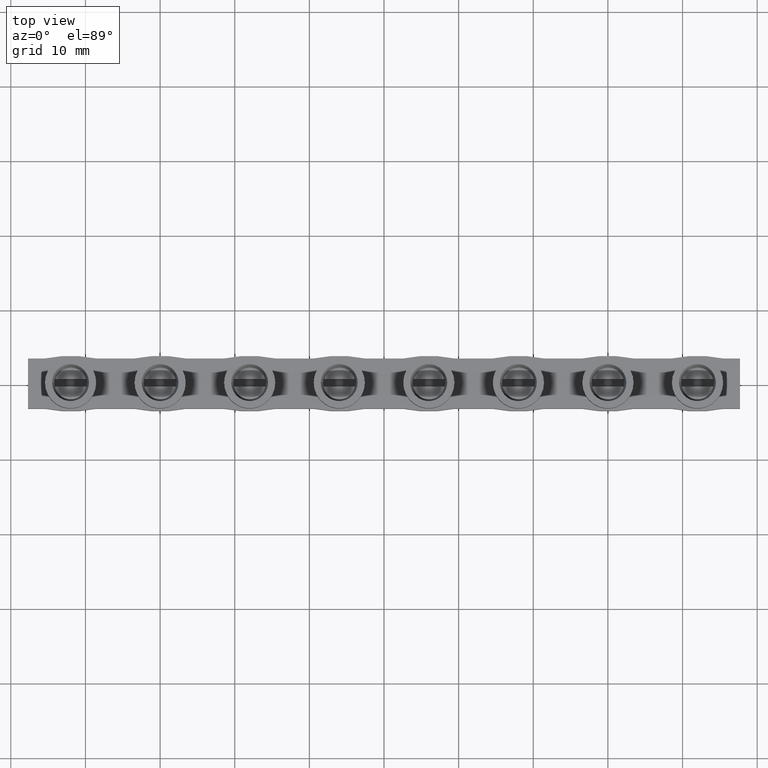
[diagram: clean part render]
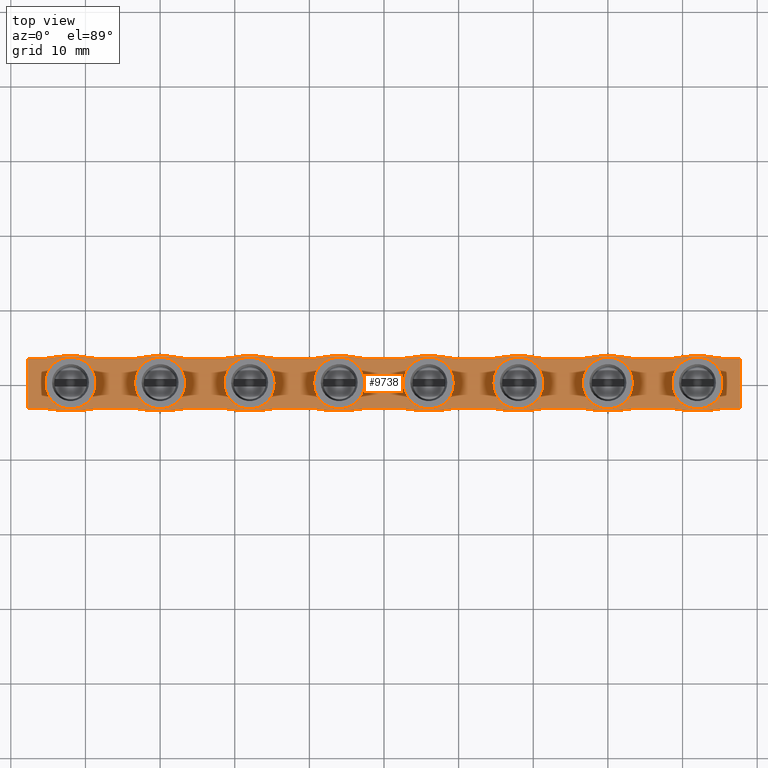
[diagram: same view with one face highlighted and labeled with its STEP entity id]
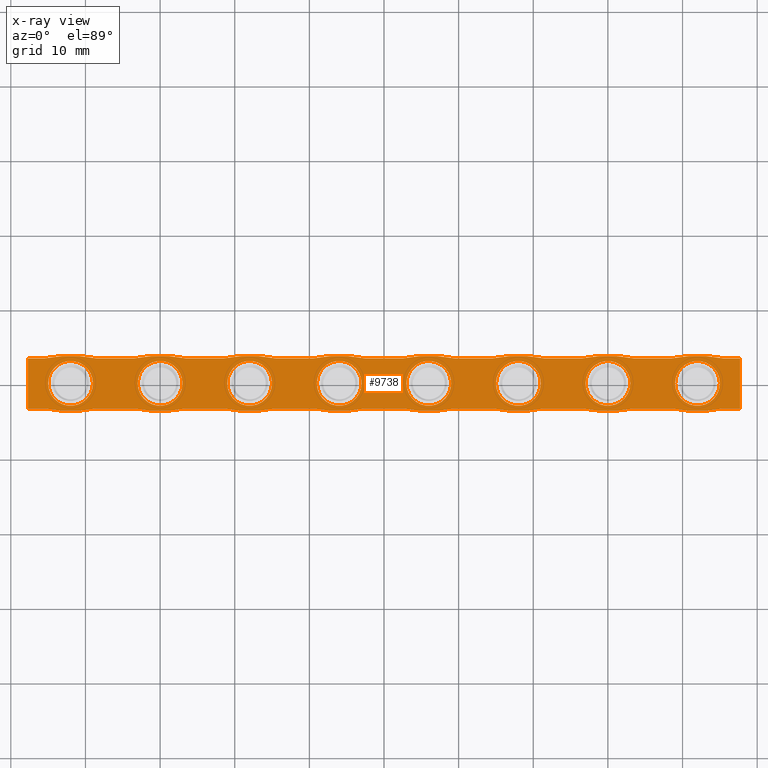
[diagram: x-ray of the same camera — body ghosted, the highlighted face saturated]
A machine part, top view. The second image highlights one B-rep face of the part: STEP entity #9738.
The next image is the same camera in x-ray: the body ghosted, the highlighted face saturated — about 0% of this face is hidden behind the body in this view.
In plain terms, the highlighted planar face has unit normal (0, 0, -1).
Its self-contained STEP definition (entity closure, byte-faithful):
#125 = AXIS2_PLACEMENT_3D ( 'NONE', #1428, #1448, #1429 ) ;
#132 = CIRCLE ( 'NONE', #125, 3.000000000000002700 ) ;
#263 = AXIS2_PLACEMENT_3D ( 'NONE', #11382, #11384, #11360 ) ;
#271 = CIRCLE ( 'NONE', #263, 3.000000000000002700 ) ;
#473 = AXIS2_PLACEMENT_3D ( 'NONE', #6692, #6693, #6718 ) ;
#594 = VECTOR ( 'NONE', #8510, 1000.000000000000000 ) ;
#595 = CIRCLE ( 'NONE', #626, 16.95000000000021600 ) ;
#604 = VECTOR ( 'NONE', #8411, 1000.000000000000000 ) ;
#605 = CIRCLE ( 'NONE', #606, 16.95000000000022000 ) ;
#606 = AXIS2_PLACEMENT_3D ( 'NONE', #8459, #8485, #8460 ) ;
#607 = VECTOR ( 'NONE', #8462, 1000.000000000000000 ) ;
#608 = VECTOR ( 'NONE', #8453, 1000.000000000000000 ) ;
#624 = VECTOR ( 'NONE', #8480, 1000.000000000000000 ) ;
#626 = AXIS2_PLACEMENT_3D ( 'NONE', #8506, #8491, #8504 ) ;
#632 = CIRCLE ( 'NONE', #633, 3.000000000000002700 ) ;
#633 = AXIS2_PLACEMENT_3D ( 'NONE', #8492, #8522, #8498 ) ;
#646 = CIRCLE ( 'NONE', #695, 16.95000000000021600 ) ;
#647 = AXIS2_PLACEMENT_3D ( 'NONE', #8636, #8632, #8617 ) ;
#650 = CIRCLE ( 'NONE', #680, 3.000000000000002700 ) ;
#651 = CIRCLE ( 'NONE', #674, 16.95000000000022000 ) ;
#652 = CIRCLE ( 'NONE', #704, 17.15000000000021900 ) ;
#657 = AXIS2_PLACEMENT_3D ( 'NONE', #8572, #8551, #8554 ) ;
#658 = VECTOR ( 'NONE', #8584, 1000.000000000000000 ) ;
#661 = VECTOR ( 'NONE', #8618, 1000.000000000000000 ) ;
#662 = CIRCLE ( 'NONE', #698, 17.15000000000021900 ) ;
#673 = AXIS2_PLACEMENT_3D ( 'NONE', #8561, #8555, #8547 ) ;
#674 = AXIS2_PLACEMENT_3D ( 'NONE', #8646, #8650, #8647 ) ;
#680 = AXIS2_PLACEMENT_3D ( 'NONE', #8541, #8537, #8548 ) ;
#682 = VECTOR ( 'NONE', #8543, 1000.000000000000000 ) ;
#686 = CIRCLE ( 'NONE', #673, 17.15000000000021900 ) ;
#688 = CIRCLE ( 'NONE', #647, 16.95000000000022000 ) ;
#692 = CIRCLE ( 'NONE', #657, 2.999999999999999100 ) ;
#695 = AXIS2_PLACEMENT_3D ( 'NONE', #8550, #8538, #8571 ) ;
#698 = AXIS2_PLACEMENT_3D ( 'NONE', #8580, #8600, #8592 ) ;
#699 = VECTOR ( 'NONE', #8539, 1000.000000000000000 ) ;
#700 = VECTOR ( 'NONE', #8635, 1000.000000000000000 ) ;
#704 = AXIS2_PLACEMENT_3D ( 'NONE', #8586, #8607, #8587 ) ;
#920 = VECTOR ( 'NONE', #4028, 1000.000000000000000 ) ;
#927 = CIRCLE ( 'NONE', #937, 2.999999999999999100 ) ;
#937 = AXIS2_PLACEMENT_3D ( 'NONE', #4105, #4113, #4087 ) ;
#987 = CIRCLE ( 'NONE', #1000, 2.999999999999999100 ) ;
#1000 = AXIS2_PLACEMENT_3D ( 'NONE', #4268, #4280, #4256 ) ;
#1153 = CARTESIAN_POINT ( 'NONE',  ( -69.00000000000000000, -1.336835475921839500E-014, -0.9000000000000014700 ) ) ;
#1223 = CARTESIAN_POINT ( 'NONE',  ( -56.99999999999999300, -1.107906329272462600E-014, -0.9000000000000014700 ) ) ;
#1428 = CARTESIAN_POINT ( 'NONE',  ( -72.00000000000001400, -1.373574879896260100E-014, -0.9000000000000014700 ) ) ;
#1429 = DIRECTION ( 'NONE',  ( -1.000000000000000000, 0.0000000000000000000, 0.0000000000000000000 ) ) ;
#1448 = DIRECTION ( 'NONE',  ( 0.0000000000000000000, 0.0000000000000000000, 1.000000000000000000 ) ) ;
#1707 = EDGE_CURVE ( 'NONE', #2871, #2787, #8393, .T. ) ;
#1710 = EDGE_CURVE ( 'NONE', #2871, #2802, #605, .T. ) ;
#1712 = EDGE_CURVE ( 'NONE', #2794, #2796, #8488, .T. ) ;
#1714 = EDGE_CURVE ( 'NONE', #2803, #2770, #8454, .T. ) ;
#1735 = EDGE_CURVE ( 'NONE', #2806, #2805, #8452, .T. ) ;
#1737 = EDGE_CURVE ( 'NONE', #2804, #2860, #8450, .T. ) ;
#1752 = EDGE_CURVE ( 'NONE', #2804, #2855, #595, .T. ) ;
#1755 = EDGE_CURVE ( 'NONE', #2669, #2613, #632, .T. ) ;
#1771 = EDGE_CURVE ( 'NONE', #2848, #2845, #686, .T. ) ;
#1774 = EDGE_CURVE ( 'NONE', #2692, #2693, #650, .T. ) ;
#1775 = EDGE_CURVE ( 'NONE', #2816, #2845, #8573, .T. ) ;
#1776 = EDGE_CURVE ( 'NONE', #2848, #2843, #8534, .T. ) ;
#1779 = EDGE_CURVE ( 'NONE', #2782, #2860, #646, .T. ) ;
#1789 = EDGE_CURVE ( 'NONE', #2668, #2677, #692, .T. ) ;
#1796 = EDGE_CURVE ( 'NONE', #2760, #2806, #8569, .T. ) ;
#1801 = EDGE_CURVE ( 'NONE', #2701, #2768, #652, .T. ) ;
#1815 = EDGE_CURVE ( 'NONE', #2799, #2796, #662, .T. ) ;
#1834 = EDGE_CURVE ( 'NONE', #2792, #2787, #688, .T. ) ;
#1841 = EDGE_CURVE ( 'NONE', #2799, #2760, #8634, .T. ) ;
#1843 = EDGE_CURVE ( 'NONE', #2866, #2857, #8614, .T. ) ;
#1844 = EDGE_CURVE ( 'NONE', #2798, #2761, #651, .T. ) ;
#2227 = EDGE_CURVE ( 'NONE', #2701, #2779, #4040, .T. ) ;
#2452 = EDGE_CURVE ( 'NONE', #2633, #2676, #927, .T. ) ;
#2498 = EDGE_CURVE ( 'NONE', #2677, #2668, #987, .T. ) ;
#2608 = VERTEX_POINT ( 'NONE', #4565 ) ;
#2613 = VERTEX_POINT ( 'NONE', #4540 ) ;
#2622 = VERTEX_POINT ( 'NONE', #4538 ) ;
#2633 = VERTEX_POINT ( 'NONE', #4555 ) ;
#2668 = VERTEX_POINT ( 'NONE', #4627 ) ;
#2669 = VERTEX_POINT ( 'NONE', #4584 ) ;
#2676 = VERTEX_POINT ( 'NONE', #4613 ) ;
#2677 = VERTEX_POINT ( 'NONE', #4596 ) ;
#2692 = VERTEX_POINT ( 'NONE', #4617 ) ;
#2693 = VERTEX_POINT ( 'NONE', #4633 ) ;
#2701 = VERTEX_POINT ( 'NONE', #4605 ) ;
#2704 = VERTEX_POINT ( 'NONE', #4587 ) ;
#2714 = VERTEX_POINT ( 'NONE', #4641 ) ;
#2723 = VERTEX_POINT ( 'NONE', #4650 ) ;
#2760 = VERTEX_POINT ( 'NONE', #4677 ) ;
#2761 = VERTEX_POINT ( 'NONE', #4665 ) ;
#2764 = VERTEX_POINT ( 'NONE', #4666 ) ;
#2768 = VERTEX_POINT ( 'NONE', #4685 ) ;
#2770 = VERTEX_POINT ( 'NONE', #4668 ) ;
#2775 = VERTEX_POINT ( 'NONE', #4687 ) ;
#2779 = VERTEX_POINT ( 'NONE', #4692 ) ;
#2782 = VERTEX_POINT ( 'NONE', #4704 ) ;
#2783 = VERTEX_POINT ( 'NONE', #4649 ) ;
#2785 = VERTEX_POINT ( 'NONE', #4711 ) ;
#2787 = VERTEX_POINT ( 'NONE', #4719 ) ;
#2789 = VERTEX_POINT ( 'NONE', #4726 ) ;
#2791 = VERTEX_POINT ( 'NONE', #4709 ) ;
#2792 = VERTEX_POINT ( 'NONE', #4714 ) ;
#2794 = VERTEX_POINT ( 'NONE', #4739 ) ;
#2796 = VERTEX_POINT ( 'NONE', #4753 ) ;
#2798 = VERTEX_POINT ( 'NONE', #4723 ) ;
#2799 = VERTEX_POINT ( 'NONE', #4741 ) ;
#2802 = VERTEX_POINT ( 'NONE', #4760 ) ;
#2803 = VERTEX_POINT ( 'NONE', #4733 ) ;
#2804 = VERTEX_POINT ( 'NONE', #4734 ) ;
#2805 = VERTEX_POINT ( 'NONE', #4742 ) ;
#2806 = VERTEX_POINT ( 'NONE', #4743 ) ;
#2816 = VERTEX_POINT ( 'NONE', #4728 ) ;
#2818 = VERTEX_POINT ( 'NONE', #4758 ) ;
#2843 = VERTEX_POINT ( 'NONE', #4776 ) ;
#2845 = VERTEX_POINT ( 'NONE', #4762 ) ;
#2848 = VERTEX_POINT ( 'NONE', #4824 ) ;
#2855 = VERTEX_POINT ( 'NONE', #4783 ) ;
#2857 = VERTEX_POINT ( 'NONE', #4771 ) ;
#2860 = VERTEX_POINT ( 'NONE', #4789 ) ;
#2866 = VERTEX_POINT ( 'NONE', #4808 ) ;
#2871 = VERTEX_POINT ( 'NONE', #4769 ) ;
#2874 = VERTEX_POINT ( 'NONE', #4782 ) ;
#2883 = VERTEX_POINT ( 'NONE', #4764 ) ;
#2886 = VERTEX_POINT ( 'NONE', #4766 ) ;
#3824 = EDGE_LOOP ( 'NONE', ( #5349, #5352 ) ) ;
#3836 = EDGE_LOOP ( 'NONE', ( #5407, #5411, #5348, #5392, #5395, #5302, #5358, #5320, #5403, #5351, #5370, #5402, #5373, #5367, #5409, #5397, #5387, #5374, #5404, #5378, #5408, #5405, #5396, #5314, #5393, #5319, #5372, #5362, #5290, #5382, #5410, #5298, #5291, #5406, #5364, #5350 ) ) ;
#3837 = EDGE_LOOP ( 'NONE', ( #5360, #5301 ) ) ;
#3850 = EDGE_LOOP ( 'NONE', ( #5289, #5401 ) ) ;
#3858 = EDGE_LOOP ( 'NONE', ( #5363, #5385 ) ) ;
#3869 = EDGE_LOOP ( 'NONE', ( #5375, #5381 ) ) ;
#3871 = EDGE_LOOP ( 'NONE', ( #5365, #5321 ) ) ;
#3883 = EDGE_LOOP ( 'NONE', ( #5400, #5292 ) ) ;
#3885 = EDGE_LOOP ( 'NONE', ( #5366, #5368 ) ) ;
#3894 = VERTEX_POINT ( 'NONE', #1153 ) ;
#3936 = VERTEX_POINT ( 'NONE', #1223 ) ;
#4028 = DIRECTION ( 'NONE',  ( 1.000000000000000000, 1.245679091791856200E-016, -0.0000000000000000000 ) ) ;
#4036 = CARTESIAN_POINT ( 'NONE',  ( 4.150000000000007500, -3.349999999999916200, -0.9000000000000014700 ) ) ;
#4040 = LINE ( 'NONE', #4036, #920 ) ;
#4087 = DIRECTION ( 'NONE',  ( -1.000000000000000000, 0.0000000000000000000, 0.0000000000000000000 ) ) ;
#4105 = CARTESIAN_POINT ( 'NONE',  ( -24.00000000000000000, -4.578582932987532800E-015, -0.9000000000000014700 ) ) ;
#4113 = DIRECTION ( 'NONE',  ( 0.0000000000000000000, 0.0000000000000000000, 1.000000000000000000 ) ) ;
#4256 = DIRECTION ( 'NONE',  ( -1.000000000000000000, 0.0000000000000000000, 0.0000000000000000000 ) ) ;
#4268 = CARTESIAN_POINT ( 'NONE',  ( 0.0000000000000000000, 0.0000000000000000000, -0.9000000000000014700 ) ) ;
#4280 = DIRECTION ( 'NONE',  ( 0.0000000000000000000, 0.0000000000000000000, 1.000000000000000000 ) ) ;
#4538 = CARTESIAN_POINT ( 'NONE',  ( -75.00000000000001400, -1.373574879896260100E-014, -0.9000000000000014700 ) ) ;
#4540 = CARTESIAN_POINT ( 'NONE',  ( -45.00000000000000000, -8.789771826230860200E-015, -0.9000000000000014700 ) ) ;
#4555 = CARTESIAN_POINT ( 'NONE',  ( -21.00000000000000000, -4.211188893243326600E-015, -0.9000000000000014700 ) ) ;
#4565 = CARTESIAN_POINT ( 'NONE',  ( -63.00000000000000000, -1.144645733246883200E-014, -0.9000000000000014700 ) ) ;
#4584 = CARTESIAN_POINT ( 'NONE',  ( -51.00000000000000700, -9.157165865975065600E-015, -0.9000000000000014700 ) ) ;
#4587 = CARTESIAN_POINT ( 'NONE',  ( -15.00000000000000000, -2.289291466493766400E-015, -0.9000000000000014700 ) ) ;
#4596 = CARTESIAN_POINT ( 'NONE',  ( 2.999999999999999100, 3.673940397442058900E-016, -0.9000000000000014700 ) ) ;
#4605 = CARTESIAN_POINT ( 'NONE',  ( -8.552899769370284800, -3.349999999999917900, -0.9000000000000014700 ) ) ;
#4613 = CARTESIAN_POINT ( 'NONE',  ( -27.00000000000000000, -4.578582932987532800E-015, -0.9000000000000014700 ) ) ;
#4617 = CARTESIAN_POINT ( 'NONE',  ( -33.00000000000000000, -6.500480359737095000E-015, -0.9000000000000014700 ) ) ;
#4627 = CARTESIAN_POINT ( 'NONE',  ( -2.999999999999999100, 0.0000000000000000000, -0.9000000000000014700 ) ) ;
#4633 = CARTESIAN_POINT ( 'NONE',  ( -39.00000000000000700, -6.867874399481300400E-015, -0.9000000000000014700 ) ) ;
#4641 = CARTESIAN_POINT ( 'NONE',  ( 15.00000000000000000, 1.833357540569354400E-015, -0.9000000000000014700 ) ) ;
#4649 = CARTESIAN_POINT ( 'NONE',  ( -63.44710023062970100, -3.349999999999927700, -0.9000000000000014700 ) ) ;
#4650 = CARTESIAN_POINT ( 'NONE',  ( 9.000000000000001800, 1.465963500825148300E-015, -0.9000000000000014700 ) ) ;
#4665 = CARTESIAN_POINT ( 'NONE',  ( -44.57326686186492300, 3.350000000000076500, -0.9000000000000014700 ) ) ;
#4666 = CARTESIAN_POINT ( 'NONE',  ( -39.42673313813508400, 3.350000000000077800, -0.9000000000000014700 ) ) ;
#4668 = CARTESIAN_POINT ( 'NONE',  ( -75.44710023062971500, -3.349999999999930400, -0.9000000000000014700 ) ) ;
#4677 = CARTESIAN_POINT ( 'NONE',  ( 17.69999999999921800, -3.349999999999913900, -0.9000000000000014700 ) ) ;
#4685 = CARTESIAN_POINT ( 'NONE',  ( -15.44710023062970100, -3.349999999999918400, -0.9000000000000014700 ) ) ;
#4687 = CARTESIAN_POINT ( 'NONE',  ( -20.57326686186491900, 3.350000000000080900, -0.9000000000000014700 ) ) ;
#4692 = CARTESIAN_POINT ( 'NONE',  ( -3.447100230629700900, -3.349999999999916600, -0.9000000000000014700 ) ) ;
#4704 = CARTESIAN_POINT ( 'NONE',  ( -75.42673313813507700, 3.350000000000070700, -0.9000000000000014700 ) ) ;
#4709 = CARTESIAN_POINT ( 'NONE',  ( -9.000000000000001800, -1.921897426749560600E-015, -0.9000000000000014700 ) ) ;
#4711 = CARTESIAN_POINT ( 'NONE',  ( -27.42673313813508100, 3.350000000000080000, -0.9000000000000014700 ) ) ;
#4714 = CARTESIAN_POINT ( 'NONE',  ( -15.42673313813508100, 3.350000000000082700, -0.9000000000000014700 ) ) ;
#4719 = CARTESIAN_POINT ( 'NONE',  ( -8.573266861864919300, 3.350000000000083600, -0.9000000000000014700 ) ) ;
#4723 = CARTESIAN_POINT ( 'NONE',  ( -51.42673313813508400, 3.350000000000075600, -0.9000000000000014700 ) ) ;
#4726 = CARTESIAN_POINT ( 'NONE',  ( 8.573266861864922800, 3.350000000000086200, -0.9000000000000014700 ) ) ;
#4728 = CARTESIAN_POINT ( 'NONE',  ( -44.55289976937028500, -3.349999999999924600, -0.9000000000000014700 ) ) ;
#4733 = CARTESIAN_POINT ( 'NONE',  ( -77.70000000000000300, -3.349999999999930400, -0.9000000000000014700 ) ) ;
#4734 = CARTESIAN_POINT ( 'NONE',  ( -63.42673313813507000, 3.350000000000073400, -0.9000000000000014700 ) ) ;
#4739 = CARTESIAN_POINT ( 'NONE',  ( 3.447100230629714700, -3.349999999999915700, -0.9000000000000014700 ) ) ;
#4741 = CARTESIAN_POINT ( 'NONE',  ( 15.44710023062971500, -3.349999999999914400, -0.9000000000000014700 ) ) ;
#4742 = CARTESIAN_POINT ( 'NONE',  ( 15.42673313813508100, 3.350000000000086700, -0.9000000000000014700 ) ) ;
#4743 = CARTESIAN_POINT ( 'NONE',  ( 17.69999999999921800, 3.350000000000087100, -0.9000000000000014700 ) ) ;
#4753 = CARTESIAN_POINT ( 'NONE',  ( 8.552899769370297300, -3.349999999999914800, -0.9000000000000014700 ) ) ;
#4758 = CARTESIAN_POINT ( 'NONE',  ( -32.57326686186492300, 3.350000000000078700, -0.9000000000000014700 ) ) ;
#4760 = CARTESIAN_POINT ( 'NONE',  ( 3.426733138135080300, 3.350000000000085400, -0.9000000000000014700 ) ) ;
#4762 = CARTESIAN_POINT ( 'NONE',  ( -39.44710023062970800, -3.349999999999923300, -0.9000000000000014700 ) ) ;
#4764 = CARTESIAN_POINT ( 'NONE',  ( -68.55289976937028500, -3.349999999999929500, -0.9000000000000014700 ) ) ;
#4766 = CARTESIAN_POINT ( 'NONE',  ( -20.55289976937028500, -3.349999999999920200, -0.9000000000000014700 ) ) ;
#4769 = CARTESIAN_POINT ( 'NONE',  ( -3.426733138135080300, 3.350000000000084500, -0.9000000000000014700 ) ) ;
#4771 = CARTESIAN_POINT ( 'NONE',  ( -51.44710023062970800, -3.349999999999925500, -0.9000000000000014700 ) ) ;
#4776 = CARTESIAN_POINT ( 'NONE',  ( -27.44710023062970100, -3.349999999999921000, -0.9000000000000014700 ) ) ;
#4782 = CARTESIAN_POINT ( 'NONE',  ( -77.70000000000000300, 3.350000000000070700, -0.9000000000000014700 ) ) ;
#4783 = CARTESIAN_POINT ( 'NONE',  ( -56.57326686186491600, 3.350000000000074300, -0.9000000000000014700 ) ) ;
#4789 = CARTESIAN_POINT ( 'NONE',  ( -68.57326686186493700, 3.350000000000071600, -0.9000000000000014700 ) ) ;
#4808 = CARTESIAN_POINT ( 'NONE',  ( -56.55289976937027800, -3.349999999999926800, -0.9000000000000014700 ) ) ;
#4824 = CARTESIAN_POINT ( 'NONE',  ( -32.55289976937028500, -3.349999999999922400, -0.9000000000000014700 ) ) ;
#5289 = ORIENTED_EDGE ( 'NONE', *, *, #12122, .F. ) ;
#5290 = ORIENTED_EDGE ( 'NONE', *, *, #1707, .T. ) ;
#5291 = ORIENTED_EDGE ( 'NONE', *, *, #12101, .T. ) ;
#5292 = ORIENTED_EDGE ( 'NONE', *, *, #9580, .F. ) ;
#5298 = ORIENTED_EDGE ( 'NONE', *, *, #12121, .F. ) ;
#5301 = ORIENTED_EDGE ( 'NONE', *, *, #9961, .F. ) ;
#5302 = ORIENTED_EDGE ( 'NONE', *, *, #12108, .T. ) ;
#5314 = ORIENTED_EDGE ( 'NONE', *, *, #1796, .T. ) ;
#5319 = ORIENTED_EDGE ( 'NONE', *, *, #12086, .F. ) ;
#5320 = ORIENTED_EDGE ( 'NONE', *, *, #12129, .F. ) ;
#5321 = ORIENTED_EDGE ( 'NONE', *, *, #9901, .F. ) ;
#5348 = ORIENTED_EDGE ( 'NONE', *, *, #1737, .T. ) ;
#5349 = ORIENTED_EDGE ( 'NONE', *, *, #12140, .F. ) ;
#5350 = ORIENTED_EDGE ( 'NONE', *, *, #1844, .F. ) ;
#5351 = ORIENTED_EDGE ( 'NONE', *, *, #12099, .F. ) ;
#5352 = ORIENTED_EDGE ( 'NONE', *, *, #9985, .F. ) ;
#5358 = ORIENTED_EDGE ( 'NONE', *, *, #1714, .T. ) ;
#5360 = ORIENTED_EDGE ( 'NONE', *, *, #12105, .F. ) ;
#5362 = ORIENTED_EDGE ( 'NONE', *, *, #1710, .F. ) ;
#5363 = ORIENTED_EDGE ( 'NONE', *, *, #12107, .F. ) ;
#5364 = ORIENTED_EDGE ( 'NONE', *, *, #12089, .T. ) ;
#5365 = ORIENTED_EDGE ( 'NONE', *, *, #1755, .F. ) ;
#5366 = ORIENTED_EDGE ( 'NONE', *, *, #12091, .F. ) ;
#5367 = ORIENTED_EDGE ( 'NONE', *, *, #1771, .F. ) ;
#5368 = ORIENTED_EDGE ( 'NONE', *, *, #2452, .F. ) ;
#5370 = ORIENTED_EDGE ( 'NONE', *, *, #1843, .T. ) ;
#5372 = ORIENTED_EDGE ( 'NONE', *, *, #9986, .T. ) ;
#5373 = ORIENTED_EDGE ( 'NONE', *, *, #1775, .T. ) ;
#5374 = ORIENTED_EDGE ( 'NONE', *, *, #1801, .F. ) ;
#5375 = ORIENTED_EDGE ( 'NONE', *, *, #1789, .F. ) ;
#5378 = ORIENTED_EDGE ( 'NONE', *, *, #12124, .F. ) ;
#5381 = ORIENTED_EDGE ( 'NONE', *, *, #2498, .F. ) ;
#5382 = ORIENTED_EDGE ( 'NONE', *, *, #1834, .F. ) ;
#5385 = ORIENTED_EDGE ( 'NONE', *, *, #9420, .F. ) ;
#5387 = ORIENTED_EDGE ( 'NONE', *, *, #12128, .T. ) ;
#5392 = ORIENTED_EDGE ( 'NONE', *, *, #1779, .F. ) ;
#5393 = ORIENTED_EDGE ( 'NONE', *, *, #1735, .T. ) ;
#5395 = ORIENTED_EDGE ( 'NONE', *, *, #12123, .T. ) ;
#5396 = ORIENTED_EDGE ( 'NONE', *, *, #1841, .T. ) ;
#5397 = ORIENTED_EDGE ( 'NONE', *, *, #12139, .F. ) ;
#5400 = ORIENTED_EDGE ( 'NONE', *, *, #12102, .F. ) ;
#5401 = ORIENTED_EDGE ( 'NONE', *, *, #1774, .F. ) ;
#5402 = ORIENTED_EDGE ( 'NONE', *, *, #12087, .F. ) ;
#5403 = ORIENTED_EDGE ( 'NONE', *, *, #12120, .T. ) ;
#5404 = ORIENTED_EDGE ( 'NONE', *, *, #2227, .T. ) ;
#5405 = ORIENTED_EDGE ( 'NONE', *, *, #1815, .F. ) ;
#5406 = ORIENTED_EDGE ( 'NONE', *, *, #12090, .F. ) ;
#5407 = ORIENTED_EDGE ( 'NONE', *, *, #12081, .T. ) ;
#5408 = ORIENTED_EDGE ( 'NONE', *, *, #1712, .T. ) ;
#5409 = ORIENTED_EDGE ( 'NONE', *, *, #1776, .T. ) ;
#5410 = ORIENTED_EDGE ( 'NONE', *, *, #12104, .T. ) ;
#5411 = ORIENTED_EDGE ( 'NONE', *, *, #1752, .F. ) ;
#6142 = LINE ( 'NONE', #6171, #10789 ) ;
#6171 = CARTESIAN_POINT ( 'NONE',  ( -31.84999999999999100, 3.350000000000078200, -0.9000000000000014700 ) ) ;
#6173 = DIRECTION ( 'NONE',  ( -1.000000000000000000, -1.245679091791856200E-016, -0.0000000000000000000 ) ) ;
#6185 = CARTESIAN_POINT ( 'NONE',  ( -36.00000000000000700, -13.25000000000035200, -0.9000000000000014700 ) ) ;
#6186 = LINE ( 'NONE', #6190, #10882 ) ;
#6188 = DIRECTION ( 'NONE',  ( -0.0000000000000000000, -0.0000000000000000000, -1.000000000000000000 ) ) ;
#6190 = CARTESIAN_POINT ( 'NONE',  ( -19.84999999999999800, 3.350000000000080500, -0.9000000000000014700 ) ) ;
#6191 = DIRECTION ( 'NONE',  ( -1.000000000000000000, -1.245679091791856200E-016, -0.0000000000000000000 ) ) ;
#6192 = DIRECTION ( 'NONE',  ( 1.000000000000000000, -1.064373106204044800E-014, 0.0000000000000000000 ) ) ;
#6193 = DIRECTION ( 'NONE',  ( 0.0000000000000000000, 0.0000000000000000000, 1.000000000000000000 ) ) ;
#6194 = DIRECTION ( 'NONE',  ( -0.0000000000000000000, -0.0000000000000000000, -1.000000000000000000 ) ) ;
#6195 = DIRECTION ( 'NONE',  ( -1.000000000000000000, 0.0000000000000000000, 0.0000000000000000000 ) ) ;
#6198 = DIRECTION ( 'NONE',  ( 0.0000000000000000000, 0.0000000000000000000, -1.000000000000000000 ) ) ;
#6199 = CARTESIAN_POINT ( 'NONE',  ( 12.00000000000000400, -13.25000000000034300, -0.9000000000000014700 ) ) ;
#6203 = CARTESIAN_POINT ( 'NONE',  ( -48.00000000000000000, 13.45000000000007600, -0.9000000000000014700 ) ) ;
#6204 = DIRECTION ( 'NONE',  ( -1.000000000000000000, 0.0000000000000000000, 0.0000000000000000000 ) ) ;
#6205 = CARTESIAN_POINT ( 'NONE',  ( -24.00000000000000000, -4.578582932987532800E-015, -0.9000000000000014700 ) ) ;
#6206 = DIRECTION ( 'NONE',  ( 1.000000000000000000, -3.582024876648227500E-015, 0.0000000000000000000 ) ) ;
#6212 = LINE ( 'NONE', #6215, #10831 ) ;
#6213 = DIRECTION ( 'NONE',  ( 0.0000000000000000000, 0.0000000000000000000, -1.000000000000000000 ) ) ;
#6215 = CARTESIAN_POINT ( 'NONE',  ( -7.849999999999992500, 3.350000000000082700, -0.9000000000000014700 ) ) ;
#6223 = CARTESIAN_POINT ( 'NONE',  ( -60.00000000000000000, 13.45000000000007400, -0.9000000000000014700 ) ) ;
#6225 = DIRECTION ( 'NONE',  ( -1.000000000000000000, 0.0000000000000000000, 0.0000000000000000000 ) ) ;
#6232 = DIRECTION ( 'NONE',  ( -1.000000000000000000, -1.245679091791856200E-016, -0.0000000000000000000 ) ) ;
#6233 = DIRECTION ( 'NONE',  ( 0.0000000000000000000, 0.0000000000000000000, 1.000000000000000000 ) ) ;
#6234 = LINE ( 'NONE', #6252, #10876 ) ;
#6235 = DIRECTION ( 'NONE',  ( 2.009125974575783600E-016, -1.000000000000000000, 0.0000000000000000000 ) ) ;
#6236 = DIRECTION ( 'NONE',  ( 0.0000000000000000000, 0.0000000000000000000, 1.000000000000000000 ) ) ;
#6237 = DIRECTION ( 'NONE',  ( -1.000000000000000000, 0.0000000000000000000, 0.0000000000000000000 ) ) ;
#6238 = DIRECTION ( 'NONE',  ( 0.0000000000000000000, 0.0000000000000000000, 1.000000000000000000 ) ) ;
#6239 = DIRECTION ( 'NONE',  ( -1.000000000000000000, -1.245679091791856200E-016, -0.0000000000000000000 ) ) ;
#6240 = DIRECTION ( 'NONE',  ( -1.000000000000000000, 0.0000000000000000000, 0.0000000000000000000 ) ) ;
#6241 = LINE ( 'NONE', #6257, #10846 ) ;
#6243 = CARTESIAN_POINT ( 'NONE',  ( 12.00000000000000000, 1.465963500825148300E-015, -0.9000000000000014700 ) ) ;
#6252 = CARTESIAN_POINT ( 'NONE',  ( 4.150000000000007500, 3.350000000000084900, -0.9000000000000014700 ) ) ;
#6254 = CARTESIAN_POINT ( 'NONE',  ( -60.00000000000000000, -1.144645733246883200E-014, -0.9000000000000014700 ) ) ;
#6256 = CARTESIAN_POINT ( 'NONE',  ( -72.00000000000001400, -1.373574879896260100E-014, -0.9000000000000014700 ) ) ;
#6257 = CARTESIAN_POINT ( 'NONE',  ( -77.70000000000000300, -3.349999999999923700, -0.9000000000000014700 ) ) ;
#6259 = DIRECTION ( 'NONE',  ( -1.000000000000000000, 0.0000000000000000000, 0.0000000000000000000 ) ) ;
#6280 = CARTESIAN_POINT ( 'NONE',  ( -43.84999999999998700, -3.349999999999925000, -0.9000000000000014700 ) ) ;
#6283 = LINE ( 'NONE', #6298, #10901 ) ;
#6291 = DIRECTION ( 'NONE',  ( 1.000000000000000000, 1.245679091791856200E-016, -0.0000000000000000000 ) ) ;
#6294 = LINE ( 'NONE', #6280, #10872 ) ;
#6295 = CARTESIAN_POINT ( 'NONE',  ( -36.00000000000000700, -6.867874399481300400E-015, -0.9000000000000014700 ) ) ;
#6296 = DIRECTION ( 'NONE',  ( -0.0000000000000000000, -0.0000000000000000000, -1.000000000000000000 ) ) ;
#6297 = DIRECTION ( 'NONE',  ( 1.000000000000000000, 0.0000000000000000000, 0.0000000000000000000 ) ) ;
#6298 = CARTESIAN_POINT ( 'NONE',  ( -55.84999999999999400, 3.350000000000073400, -0.9000000000000014700 ) ) ;
#6299 = DIRECTION ( 'NONE',  ( 0.0000000000000000000, 0.0000000000000000000, 1.000000000000000000 ) ) ;
#6300 = DIRECTION ( 'NONE',  ( -1.000000000000000000, -1.245679091791856200E-016, -0.0000000000000000000 ) ) ;
#6301 = DIRECTION ( 'NONE',  ( -1.000000000000000000, 0.0000000000000000000, 0.0000000000000000000 ) ) ;
#6303 = CARTESIAN_POINT ( 'NONE',  ( 3.469446951953614200E-015, 13.45000000000008500, -0.9000000000000014700 ) ) ;
#6304 = DIRECTION ( 'NONE',  ( -1.000000000000000000, 0.0000000000000000000, 0.0000000000000000000 ) ) ;
#6305 = CARTESIAN_POINT ( 'NONE',  ( -23.99999999999999600, -13.25000000000035000, -0.9000000000000014700 ) ) ;
#6306 = DIRECTION ( 'NONE',  ( 0.0000000000000000000, 0.0000000000000000000, -1.000000000000000000 ) ) ;
#6310 = LINE ( 'NONE', #6319, #10923 ) ;
#6319 = CARTESIAN_POINT ( 'NONE',  ( 4.150000000000007500, -3.349999999999916200, -0.9000000000000014700 ) ) ;
#6320 = DIRECTION ( 'NONE',  ( 0.0000000000000000000, 0.0000000000000000000, -1.000000000000000000 ) ) ;
#6325 = DIRECTION ( 'NONE',  ( 1.000000000000000000, 1.245679091791856200E-016, -0.0000000000000000000 ) ) ;
#6327 = DIRECTION ( 'NONE',  ( -1.000000000000000000, 0.0000000000000000000, 0.0000000000000000000 ) ) ;
#6332 = CARTESIAN_POINT ( 'NONE',  ( -72.00000000000001400, 13.45000000000007200, -0.9000000000000014700 ) ) ;
#6345 = DIRECTION ( 'NONE',  ( -1.000000000000000000, 0.0000000000000000000, 0.0000000000000000000 ) ) ;
#6350 = DIRECTION ( 'NONE',  ( -1.000000000000000000, 0.0000000000000000000, 0.0000000000000000000 ) ) ;
#6366 = CARTESIAN_POINT ( 'NONE',  ( -23.99999999999999600, 13.45000000000007900, -0.9000000000000014700 ) ) ;
#6367 = DIRECTION ( 'NONE',  ( 0.0000000000000000000, 0.0000000000000000000, -1.000000000000000000 ) ) ;
#6373 = DIRECTION ( 'NONE',  ( 0.0000000000000000000, 0.0000000000000000000, 1.000000000000000000 ) ) ;
#6375 = CARTESIAN_POINT ( 'NONE',  ( -12.00000000000000000, -2.289291466493766400E-015, -0.9000000000000014700 ) ) ;
#6671 = FACE_BOUND ( 'NONE', #3871, .T. ) ;
#6672 = FACE_BOUND ( 'NONE', #3883, .T. ) ;
#6680 = FACE_BOUND ( 'NONE', #3885, .T. ) ;
#6682 = PLANE ( 'NONE',  #473 ) ;
#6687 = FACE_BOUND ( 'NONE', #3869, .T. ) ;
#6688 = FACE_OUTER_BOUND ( 'NONE', #3836, .T. ) ;
#6689 = FACE_BOUND ( 'NONE', #3824, .T. ) ;
#6692 = CARTESIAN_POINT ( 'NONE',  ( -89.85000000000005100, -3.349999999999926400, -0.9000000000000014700 ) ) ;
#6693 = DIRECTION ( 'NONE',  ( 0.0000000000000000000, 0.0000000000000000000, -1.000000000000000000 ) ) ;
#6694 = FACE_BOUND ( 'NONE', #3858, .T. ) ;
#6695 = FACE_BOUND ( 'NONE', #3837, .T. ) ;
#6700 = FACE_BOUND ( 'NONE', #3850, .T. ) ;
#6718 = DIRECTION ( 'NONE',  ( -1.000000000000000000, 0.0000000000000000000, -0.0000000000000000000 ) ) ;
#7707 = DIRECTION ( 'NONE',  ( 0.0000000000000000000, 0.0000000000000000000, 1.000000000000000000 ) ) ;
#7716 = DIRECTION ( 'NONE',  ( -1.000000000000000000, 0.0000000000000000000, 0.0000000000000000000 ) ) ;
#7730 = CARTESIAN_POINT ( 'NONE',  ( 12.00000000000000000, 1.465963500825148300E-015, -0.9000000000000014700 ) ) ;
#7773 = CARTESIAN_POINT ( 'NONE',  ( -12.00000000000000000, -2.289291466493766400E-015, -0.9000000000000014700 ) ) ;
#7786 = DIRECTION ( 'NONE',  ( -1.000000000000000000, 0.0000000000000000000, 0.0000000000000000000 ) ) ;
#7787 = CARTESIAN_POINT ( 'NONE',  ( 4.150000000000007500, 3.350000000000084900, -0.9000000000000014700 ) ) ;
#7789 = DIRECTION ( 'NONE',  ( 0.0000000000000000000, 0.0000000000000000000, 1.000000000000000000 ) ) ;
#7790 = DIRECTION ( 'NONE',  ( -1.000000000000000000, -1.245679091791856200E-016, -0.0000000000000000000 ) ) ;
#7801 = LINE ( 'NONE', #7787, #11049 ) ;
#8283 = CARTESIAN_POINT ( 'NONE',  ( -48.00000000000000000, -9.157165865975065600E-015, -0.9000000000000014700 ) ) ;
#8285 = DIRECTION ( 'NONE',  ( -1.000000000000000000, 0.0000000000000000000, 0.0000000000000000000 ) ) ;
#8313 = DIRECTION ( 'NONE',  ( 0.0000000000000000000, 0.0000000000000000000, 1.000000000000000000 ) ) ;
#8393 = LINE ( 'NONE', #8410, #604 ) ;
#8410 = CARTESIAN_POINT ( 'NONE',  ( 4.150000000000007500, 3.350000000000084900, -0.9000000000000014700 ) ) ;
#8411 = DIRECTION ( 'NONE',  ( -1.000000000000000000, -1.245679091791856200E-016, -0.0000000000000000000 ) ) ;
#8450 = LINE ( 'NONE', #8455, #594 ) ;
#8452 = LINE ( 'NONE', #8482, #608 ) ;
#8453 = DIRECTION ( 'NONE',  ( -1.000000000000000000, -1.245679091791856200E-016, -0.0000000000000000000 ) ) ;
#8454 = LINE ( 'NONE', #8461, #624 ) ;
#8455 = CARTESIAN_POINT ( 'NONE',  ( -43.84999999999998700, 3.350000000000076000, -0.9000000000000014700 ) ) ;
#8459 = CARTESIAN_POINT ( 'NONE',  ( 3.469446951953614200E-015, -13.25000000000034500, -0.9000000000000014700 ) ) ;
#8460 = DIRECTION ( 'NONE',  ( 1.000000000000000000, 0.0000000000000000000, 0.0000000000000000000 ) ) ;
#8461 = CARTESIAN_POINT ( 'NONE',  ( -55.84999999999999400, -3.349999999999927700, -0.9000000000000014700 ) ) ;
#8462 = DIRECTION ( 'NONE',  ( 1.000000000000000000, 1.245679091791856200E-016, -0.0000000000000000000 ) ) ;
#8480 = DIRECTION ( 'NONE',  ( 1.000000000000000000, 1.245679091791856200E-016, -0.0000000000000000000 ) ) ;
#8482 = CARTESIAN_POINT ( 'NONE',  ( 28.15000000000000900, 3.350000000000088500, -0.9000000000000014700 ) ) ;
#8483 = CARTESIAN_POINT ( 'NONE',  ( 4.150000000000007500, -3.349999999999916200, -0.9000000000000014700 ) ) ;
#8485 = DIRECTION ( 'NONE',  ( -0.0000000000000000000, -0.0000000000000000000, -1.000000000000000000 ) ) ;
#8488 = LINE ( 'NONE', #8483, #607 ) ;
#8491 = DIRECTION ( 'NONE',  ( -0.0000000000000000000, -0.0000000000000000000, -1.000000000000000000 ) ) ;
#8492 = CARTESIAN_POINT ( 'NONE',  ( -48.00000000000000000, -9.157165865975065600E-015, -0.9000000000000014700 ) ) ;
#8498 = DIRECTION ( 'NONE',  ( -1.000000000000000000, 0.0000000000000000000, 0.0000000000000000000 ) ) ;
#8504 = DIRECTION ( 'NONE',  ( 1.000000000000000000, -5.321865531020225000E-015, 0.0000000000000000000 ) ) ;
#8506 = CARTESIAN_POINT ( 'NONE',  ( -60.00000000000000000, -13.25000000000035700, -0.9000000000000014700 ) ) ;
#8510 = DIRECTION ( 'NONE',  ( -1.000000000000000000, -1.245679091791856200E-016, -0.0000000000000000000 ) ) ;
#8522 = DIRECTION ( 'NONE',  ( 0.0000000000000000000, 0.0000000000000000000, 1.000000000000000000 ) ) ;
#8534 = LINE ( 'NONE', #8545, #682 ) ;
#8536 = CARTESIAN_POINT ( 'NONE',  ( -19.84999999999999800, -3.349999999999920600, -0.9000000000000014700 ) ) ;
#8537 = DIRECTION ( 'NONE',  ( 0.0000000000000000000, 0.0000000000000000000, 1.000000000000000000 ) ) ;
#8538 = DIRECTION ( 'NONE',  ( -0.0000000000000000000, -0.0000000000000000000, -1.000000000000000000 ) ) ;
#8539 = DIRECTION ( 'NONE',  ( 1.000000000000000000, 1.245679091791856200E-016, -0.0000000000000000000 ) ) ;
#8541 = CARTESIAN_POINT ( 'NONE',  ( -36.00000000000000700, -6.867874399481300400E-015, -0.9000000000000014700 ) ) ;
#8543 = DIRECTION ( 'NONE',  ( 1.000000000000000000, 1.245679091791856200E-016, -0.0000000000000000000 ) ) ;
#8545 = CARTESIAN_POINT ( 'NONE',  ( -7.849999999999992500, -3.349999999999918400, -0.9000000000000014700 ) ) ;
#8547 = DIRECTION ( 'NONE',  ( -1.000000000000000000, 0.0000000000000000000, 0.0000000000000000000 ) ) ;
#8548 = DIRECTION ( 'NONE',  ( -1.000000000000000000, 0.0000000000000000000, 0.0000000000000000000 ) ) ;
#8550 = CARTESIAN_POINT ( 'NONE',  ( -72.00000000000001400, -13.25000000000035900, -0.9000000000000014700 ) ) ;
#8551 = DIRECTION ( 'NONE',  ( 0.0000000000000000000, 0.0000000000000000000, 1.000000000000000000 ) ) ;
#8554 = DIRECTION ( 'NONE',  ( -1.000000000000000000, 0.0000000000000000000, 0.0000000000000000000 ) ) ;
#8555 = DIRECTION ( 'NONE',  ( 0.0000000000000000000, 0.0000000000000000000, -1.000000000000000000 ) ) ;
#8561 = CARTESIAN_POINT ( 'NONE',  ( -36.00000000000000700, 13.45000000000007700, -0.9000000000000014700 ) ) ;
#8569 = LINE ( 'NONE', #8570, #658 ) ;
#8570 = CARTESIAN_POINT ( 'NONE',  ( 17.69999999999921800, -3.349999999999924100, -0.9000000000000014700 ) ) ;
#8571 = DIRECTION ( 'NONE',  ( 1.000000000000000000, 0.0000000000000000000, 0.0000000000000000000 ) ) ;
#8572 = CARTESIAN_POINT ( 'NONE',  ( 0.0000000000000000000, 0.0000000000000000000, -0.9000000000000014700 ) ) ;
#8573 = LINE ( 'NONE', #8536, #699 ) ;
#8580 = CARTESIAN_POINT ( 'NONE',  ( 12.00000000000000400, 13.45000000000008600, -0.9000000000000014700 ) ) ;
#8584 = DIRECTION ( 'NONE',  ( 0.0000000000000000000, 1.000000000000000000, 0.0000000000000000000 ) ) ;
#8586 = CARTESIAN_POINT ( 'NONE',  ( -11.99999999999999600, 13.45000000000008300, -0.9000000000000014700 ) ) ;
#8587 = DIRECTION ( 'NONE',  ( -1.000000000000000000, 0.0000000000000000000, 0.0000000000000000000 ) ) ;
#8592 = DIRECTION ( 'NONE',  ( -1.000000000000000000, 0.0000000000000000000, 0.0000000000000000000 ) ) ;
#8600 = DIRECTION ( 'NONE',  ( 0.0000000000000000000, 0.0000000000000000000, -1.000000000000000000 ) ) ;
#8607 = DIRECTION ( 'NONE',  ( 0.0000000000000000000, 0.0000000000000000000, -1.000000000000000000 ) ) ;
#8614 = LINE ( 'NONE', #8619, #700 ) ;
#8617 = DIRECTION ( 'NONE',  ( 1.000000000000000000, 0.0000000000000000000, 0.0000000000000000000 ) ) ;
#8618 = DIRECTION ( 'NONE',  ( 1.000000000000000000, 1.245679091791856200E-016, -0.0000000000000000000 ) ) ;
#8619 = CARTESIAN_POINT ( 'NONE',  ( -31.84999999999999100, -3.349999999999922800, -0.9000000000000014700 ) ) ;
#8632 = DIRECTION ( 'NONE',  ( -0.0000000000000000000, -0.0000000000000000000, -1.000000000000000000 ) ) ;
#8634 = LINE ( 'NONE', #8643, #661 ) ;
#8635 = DIRECTION ( 'NONE',  ( 1.000000000000000000, 1.245679091791856200E-016, -0.0000000000000000000 ) ) ;
#8636 = CARTESIAN_POINT ( 'NONE',  ( -11.99999999999999600, -13.25000000000034600, -0.9000000000000014700 ) ) ;
#8643 = CARTESIAN_POINT ( 'NONE',  ( 28.15000000000000900, -3.349999999999912600, -0.9000000000000014700 ) ) ;
#8646 = CARTESIAN_POINT ( 'NONE',  ( -48.00000000000000000, -13.25000000000035300, -0.9000000000000014700 ) ) ;
#8647 = DIRECTION ( 'NONE',  ( 1.000000000000000000, -1.064373106204044800E-014, 0.0000000000000000000 ) ) ;
#8650 = DIRECTION ( 'NONE',  ( -0.0000000000000000000, -0.0000000000000000000, -1.000000000000000000 ) ) ;
#9420 = EDGE_CURVE ( 'NONE', #3894, #2622, #132, .T. ) ;
#9580 = EDGE_CURVE ( 'NONE', #3936, #2608, #271, .T. ) ;
#9738 = ADVANCED_FACE ( 'NONE', ( #6687, #6688, #6695, #6689, #6680, #6700, #6671, #6672, #6694 ), #6682, .F. ) ;
#9901 = EDGE_CURVE ( 'NONE', #2613, #2669, #10971, .T. ) ;
#9961 = EDGE_CURVE ( 'NONE', #2714, #2723, #11008, .T. ) ;
#9985 = EDGE_CURVE ( 'NONE', #2791, #2704, #11052, .T. ) ;
#9986 = EDGE_CURVE ( 'NONE', #2789, #2802, #7801, .T. ) ;
#10789 = VECTOR ( 'NONE', #6173, 1000.000000000000000 ) ;
#10828 = AXIS2_PLACEMENT_3D ( 'NONE', #6203, #6198, #6204 ) ;
#10829 = AXIS2_PLACEMENT_3D ( 'NONE', #6205, #6193, #6195 ) ;
#10830 = CIRCLE ( 'NONE', #10848, 16.95000000000022000 ) ;
#10831 = VECTOR ( 'NONE', #6232, 1000.000000000000000 ) ;
#10832 = CIRCLE ( 'NONE', #10858, 3.000000000000002700 ) ;
#10835 = CIRCLE ( 'NONE', #10894, 16.95000000000022000 ) ;
#10839 = AXIS2_PLACEMENT_3D ( 'NONE', #6223, #6213, #6225 ) ;
#10842 = AXIS2_PLACEMENT_3D ( 'NONE', #6243, #6236, #6237 ) ;
#10843 = CIRCLE ( 'NONE', #10873, 16.95000000000022000 ) ;
#10844 = AXIS2_PLACEMENT_3D ( 'NONE', #6254, #6233, #6259 ) ;
#10846 = VECTOR ( 'NONE', #6235, 1000.000000000000000 ) ;
#10848 = AXIS2_PLACEMENT_3D ( 'NONE', #6185, #6188, #6192 ) ;
#10850 = CIRCLE ( 'NONE', #10828, 17.15000000000021900 ) ;
#10858 = AXIS2_PLACEMENT_3D ( 'NONE', #6256, #6238, #6240 ) ;
#10861 = CIRCLE ( 'NONE', #10839, 17.15000000000021900 ) ;
#10862 = CIRCLE ( 'NONE', #10829, 2.999999999999999100 ) ;
#10863 = CIRCLE ( 'NONE', #10842, 2.999999999999999100 ) ;
#10865 = CIRCLE ( 'NONE', #10844, 3.000000000000002700 ) ;
#10872 = VECTOR ( 'NONE', #6291, 1000.000000000000000 ) ;
#10873 = AXIS2_PLACEMENT_3D ( 'NONE', #6199, #6194, #6206 ) ;
#10876 = VECTOR ( 'NONE', #6239, 1000.000000000000000 ) ;
#10882 = VECTOR ( 'NONE', #6191, 1000.000000000000000 ) ;
#10894 = AXIS2_PLACEMENT_3D ( 'NONE', #6305, #6296, #6297 ) ;
#10898 = CIRCLE ( 'NONE', #10926, 17.15000000000021900 ) ;
#10899 = CIRCLE ( 'NONE', #10930, 2.999999999999999100 ) ;
#10901 = VECTOR ( 'NONE', #6300, 1000.000000000000000 ) ;
#10903 = CIRCLE ( 'NONE', #10916, 3.000000000000002700 ) ;
#10910 = AXIS2_PLACEMENT_3D ( 'NONE', #6366, #6367, #6345 ) ;
#10912 = AXIS2_PLACEMENT_3D ( 'NONE', #6303, #6306, #6304 ) ;
#10913 = CIRCLE ( 'NONE', #10910, 17.15000000000021900 ) ;
#10916 = AXIS2_PLACEMENT_3D ( 'NONE', #6295, #6299, #6301 ) ;
#10920 = CIRCLE ( 'NONE', #10912, 17.15000000000021900 ) ;
#10923 = VECTOR ( 'NONE', #6325, 1000.000000000000000 ) ;
#10926 = AXIS2_PLACEMENT_3D ( 'NONE', #6332, #6320, #6327 ) ;
#10930 = AXIS2_PLACEMENT_3D ( 'NONE', #6375, #6373, #6350 ) ;
#10964 = AXIS2_PLACEMENT_3D ( 'NONE', #8283, #8313, #8285 ) ;
#10971 = CIRCLE ( 'NONE', #10964, 3.000000000000002700 ) ;
#10988 = AXIS2_PLACEMENT_3D ( 'NONE', #7730, #7707, #7716 ) ;
#11008 = CIRCLE ( 'NONE', #10988, 2.999999999999999100 ) ;
#11049 = VECTOR ( 'NONE', #7790, 1000.000000000000000 ) ;
#11052 = CIRCLE ( 'NONE', #11053, 2.999999999999999100 ) ;
#11053 = AXIS2_PLACEMENT_3D ( 'NONE', #7773, #7789, #7786 ) ;
#11360 = DIRECTION ( 'NONE',  ( -1.000000000000000000, 0.0000000000000000000, 0.0000000000000000000 ) ) ;
#11382 = CARTESIAN_POINT ( 'NONE',  ( -60.00000000000000000, -1.144645733246883200E-014, -0.9000000000000014700 ) ) ;
#11384 = DIRECTION ( 'NONE',  ( 0.0000000000000000000, 0.0000000000000000000, 1.000000000000000000 ) ) ;
#12081 = EDGE_CURVE ( 'NONE', #2798, #2855, #6142, .T. ) ;
#12086 = EDGE_CURVE ( 'NONE', #2789, #2805, #10843, .T. ) ;
#12087 = EDGE_CURVE ( 'NONE', #2816, #2857, #10850, .T. ) ;
#12089 = EDGE_CURVE ( 'NONE', #2764, #2761, #6186, .T. ) ;
#12090 = EDGE_CURVE ( 'NONE', #2764, #2818, #10830, .T. ) ;
#12091 = EDGE_CURVE ( 'NONE', #2676, #2633, #10862, .T. ) ;
#12099 = EDGE_CURVE ( 'NONE', #2866, #2783, #10861, .T. ) ;
#12101 = EDGE_CURVE ( 'NONE', #2785, #2818, #6212, .T. ) ;
#12102 = EDGE_CURVE ( 'NONE', #2608, #3936, #10865, .T. ) ;
#12104 = EDGE_CURVE ( 'NONE', #2792, #2775, #6234, .T. ) ;
#12105 = EDGE_CURVE ( 'NONE', #2723, #2714, #10863, .T. ) ;
#12107 = EDGE_CURVE ( 'NONE', #2622, #3894, #10832, .T. ) ;
#12108 = EDGE_CURVE ( 'NONE', #2874, #2803, #6241, .T. ) ;
#12120 = EDGE_CURVE ( 'NONE', #2883, #2783, #6294, .T. ) ;
#12121 = EDGE_CURVE ( 'NONE', #2785, #2775, #10835, .T. ) ;
#12122 = EDGE_CURVE ( 'NONE', #2693, #2692, #10903, .T. ) ;
#12123 = EDGE_CURVE ( 'NONE', #2782, #2874, #6283, .T. ) ;
#12124 = EDGE_CURVE ( 'NONE', #2794, #2779, #10920, .T. ) ;
#12128 = EDGE_CURVE ( 'NONE', #2886, #2768, #6310, .T. ) ;
#12129 = EDGE_CURVE ( 'NONE', #2883, #2770, #10898, .T. ) ;
#12139 = EDGE_CURVE ( 'NONE', #2886, #2843, #10913, .T. ) ;
#12140 = EDGE_CURVE ( 'NONE', #2704, #2791, #10899, .T. ) ;